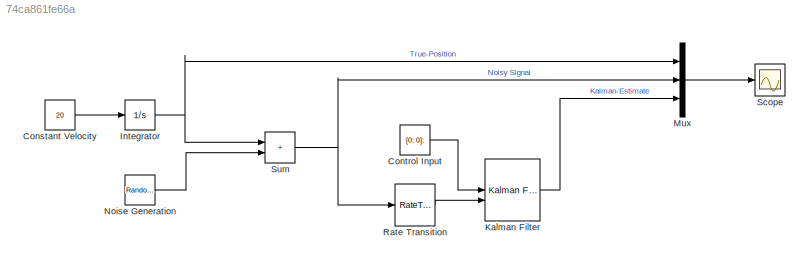
MODEL slx_74ca861fe66a
KIND model
CONFIG AbsTol = auto
CONFIG EnableMultiTasking = off
CONFIG FixedStep = auto
CONFIG MaxStep = auto
CONFIG MinStep = auto
CONFIG RelTol = 1e-3
CONFIG SampleTimeConstraint = Unconstrained
CONFIG SolverName = VariableStepAuto
CONFIG StartTime = 0.0
CONFIG StopTime = 20
BLOCK [Constant] Constant Velocity
  Value = 20
BLOCK [Constant] Control Input
  Value = [0; 0];
BLOCK [Integrator] Integrator
BLOCK [Reference] Kalman Filter  REF=ctrlSharedLib/Kalman Filter
  LibrarySourceBlock = cstblocks/State Estimation/Kalman Filter
  SourceBlock = ctrlSharedLib/Kalman Filter
  SourceType = ctrlKalmanFilter
BLOCK [Mux] Mux
  DisplayOption = bar
  Inputs = 3
BLOCK [RandomNumber] Noise Generation
  SampleTime = 0.25
  Variance = R
  VectorParams1D = off
BLOCK [RateTransition] Rate Transition
  OutPortSampleTime = 0.25
BLOCK [Scope] Scope
  Floating = off
  NumInputPorts = 1
  ScopeSpecificationString = Simulink.scopes.TimeScopeBlockCfg('CurrentConfiguration', extmgr.ConfigurationSet(extmgr.Configuration('Core','General UI',true),extmgr.Configuration('Core','Source UI',true),extmgr.Configuration('Sources','WiredSimulink',true),extmgr.Configuration('Visuals','Time Domain',true,'SerializedDisplays',{struct('MinYLimReal','-83.96275','MaxYLimReal','532.57898','YLabelReal','Position (m)','MinYLimMag',...<+1782ch>
BLOCK [Sum] Sum
  IconShape = rectangular
LINE Constant Velocity:1 -> Integrator:1
LINE Control Input:1 -> Kalman Filter:1
NET Integrator:1 -> Mux:1, Sum:1
LINE Kalman Filter:1 -> Mux:3
LINE Mux:1 -> Scope:1
LINE Noise Generation:1 -> Sum:2
LINE Rate Transition:1 -> Kalman Filter:2
NET Sum:1 -> Mux:2, Rate Transition:1
note: NET lines group one-source signal fan-out (src -> all destinations, sorted); 1:1 wires keep LINE
